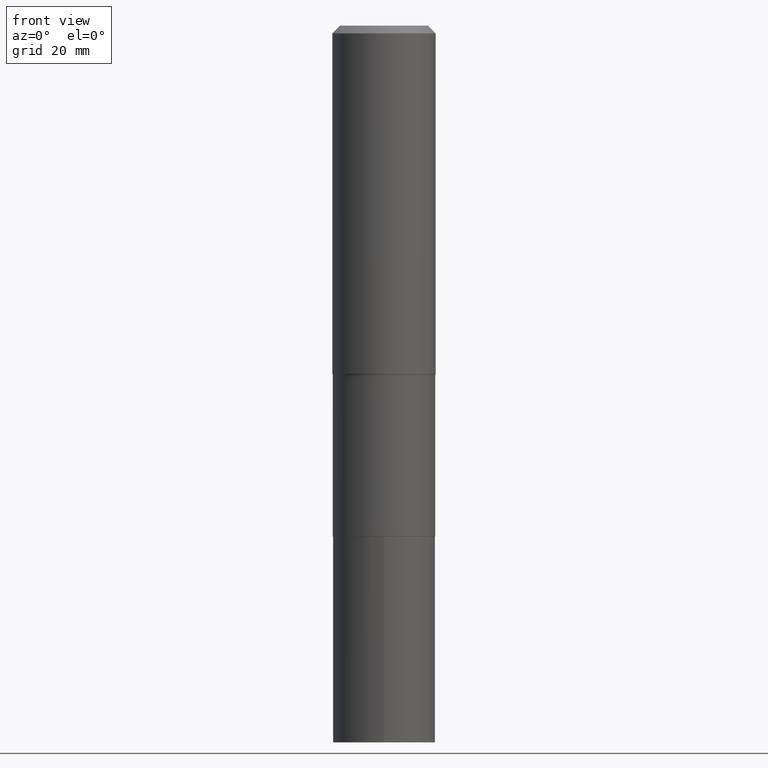
[diagram: clean part render]
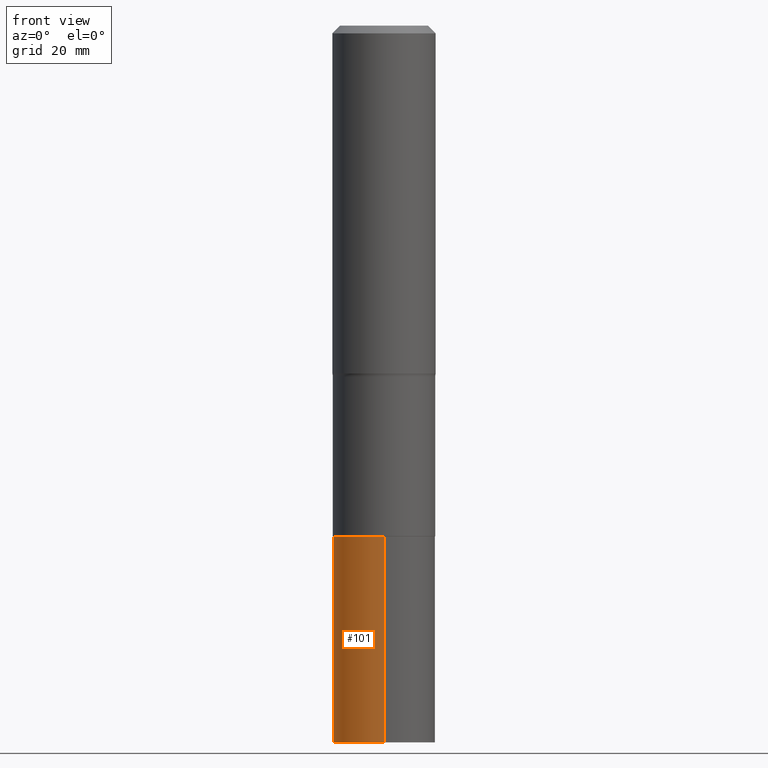
[diagram: same view with one face highlighted and labeled with its STEP entity id]
A machine part, front view. The second image highlights one B-rep face of the part: STEP entity #101.
In plain terms, the highlighted cylindrical surface (partial cylindrical patch) has radius 8.9294 mm, axis along (-0, 0, 1).
Its self-contained STEP definition (entity closure, byte-faithful):
#3 = FACE_OUTER_BOUND ( 'NONE', #212, .T. ) ;
#5 = EDGE_CURVE ( 'NONE', #31, #149, #405, .T. ) ;
#12 = CYLINDRICAL_SURFACE ( 'NONE', #435, 0.3515499999999999736 ) ;
#16 = AXIS2_PLACEMENT_3D ( 'NONE', #181, #429, #69 ) ;
#18 = AXIS2_PLACEMENT_3D ( 'NONE', #396, #317, #467 ) ;
#19 = DIRECTION ( 'NONE',  ( -6.982962677686265133E-15, -1.000000000000000000, 3.108346458443195584E-15 ) ) ;
#25 = VERTEX_POINT ( 'NONE', #369 ) ;
#29 = EDGE_CURVE ( 'NONE', #25, #149, #35, .T. ) ;
#31 = VERTEX_POINT ( 'NONE', #439 ) ;
#35 = LINE ( 'NONE', #294, #41 ) ;
#41 = VECTOR ( 'NONE', #290, 39.37007874015748143 ) ;
#69 = DIRECTION ( 'NONE',  ( -6.982962677686265133E-15, -1.000000000000000000, 3.108346458443195584E-15 ) ) ;
#89 = CIRCLE ( 'NONE', #18, 0.3515499999999999736 ) ;
#101 = ADVANCED_FACE ( 'NONE', ( #3 ), #12, .T. ) ;
#123 = ORIENTED_EDGE ( 'NONE', *, *, #363, .F. ) ;
#126 = VECTOR ( 'NONE', #421, 39.37007874015748143 ) ;
#149 = VERTEX_POINT ( 'NONE', #373 ) ;
#158 = CARTESIAN_POINT ( 'NONE',  ( 8.576992743933130300E-29, -1.224567249972456408E-14, -3.507299999999999862 ) ) ;
#171 = CARTESIAN_POINT ( 'NONE',  ( 2.497912987564734962E-15, 0.3515499999999827652, -4.921300000000002228 ) ) ;
#181 = CARTESIAN_POINT ( 'NONE',  ( 8.576992743933130300E-29, -1.224567249972456408E-14, -3.507299999999999862 ) ) ;
#212 = EDGE_LOOP ( 'NONE', ( #123, #448, #315, #318 ) ) ;
#290 = DIRECTION ( 'NONE',  ( -2.445924807738232456E-29, 3.490828318665115878E-15, 1.000000000000000000 ) ) ;
#294 = CARTESIAN_POINT ( 'NONE',  ( -2.454860529340520291E-15, -0.3515500000000121861, -3.507299999999998974 ) ) ;
#302 = DIRECTION ( 'NONE',  ( -2.445924807738232456E-29, 3.490828318665115878E-15, 1.000000000000000000 ) ) ;
#315 = ORIENTED_EDGE ( 'NONE', *, *, #29, .T. ) ;
#317 = DIRECTION ( 'NONE',  ( -2.445924807738232456E-29, 3.490828318665115878E-15, 1.000000000000000000 ) ) ;
#318 = ORIENTED_EDGE ( 'NONE', *, *, #5, .F. ) ;
#358 = CARTESIAN_POINT ( 'NONE',  ( 2.497912987564717213E-15, 0.3515499999999877612, -3.507300000000001194 ) ) ;
#363 = EDGE_CURVE ( 'NONE', #392, #31, #393, .T. ) ;
#369 = CARTESIAN_POINT ( 'NONE',  ( -2.454860529340485975E-15, -0.3515500000000171821, -4.921299999999999564 ) ) ;
#373 = CARTESIAN_POINT ( 'NONE',  ( -2.454860529340520291E-15, -0.3515500000000121861, -3.507299999999998974 ) ) ;
#392 = VERTEX_POINT ( 'NONE', #171 ) ;
#393 = LINE ( 'NONE', #358, #126 ) ;
#396 = CARTESIAN_POINT ( 'NONE',  ( 1.203553042207499101E-28, -1.718170374231704070E-14, -4.921300000000000452 ) ) ;
#405 = CIRCLE ( 'NONE', #16, 0.3515499999999999736 ) ;
#421 = DIRECTION ( 'NONE',  ( -2.445924807738232456E-29, 3.490828318665115878E-15, 1.000000000000000000 ) ) ;
#429 = DIRECTION ( 'NONE',  ( -2.445924807738232456E-29, 3.490828318665115878E-15, 1.000000000000000000 ) ) ;
#435 = AXIS2_PLACEMENT_3D ( 'NONE', #158, #302, #19 ) ;
#439 = CARTESIAN_POINT ( 'NONE',  ( 2.497912987564752712E-15, 0.3515499999999877612, -3.507300000000001194 ) ) ;
#441 = EDGE_CURVE ( 'NONE', #392, #25, #89, .T. ) ;
#448 = ORIENTED_EDGE ( 'NONE', *, *, #441, .T. ) ;
#467 = DIRECTION ( 'NONE',  ( -6.982962677686265133E-15, -1.000000000000000000, 3.108346458443195584E-15 ) ) ;